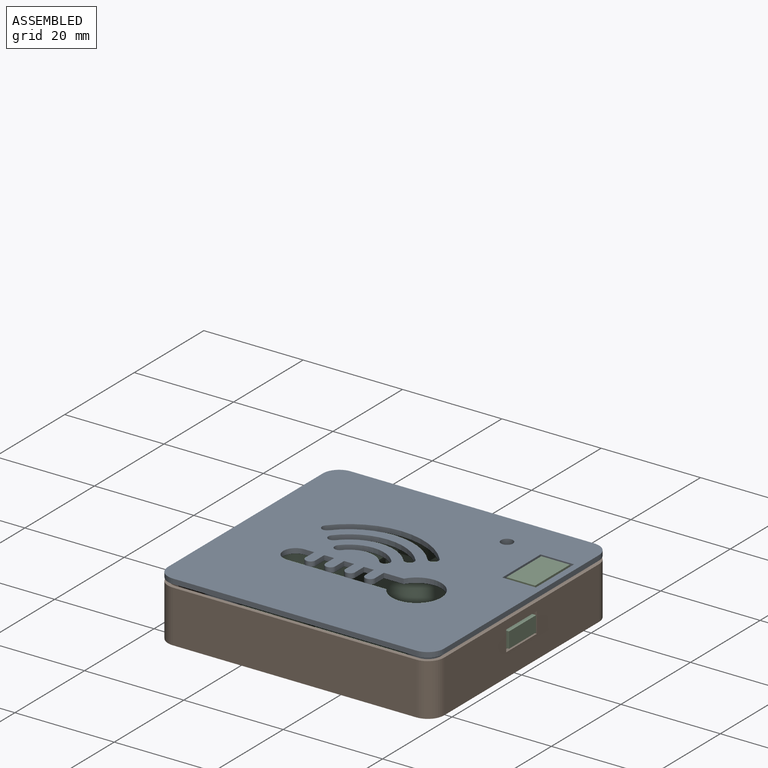
[diagram: assembled view]
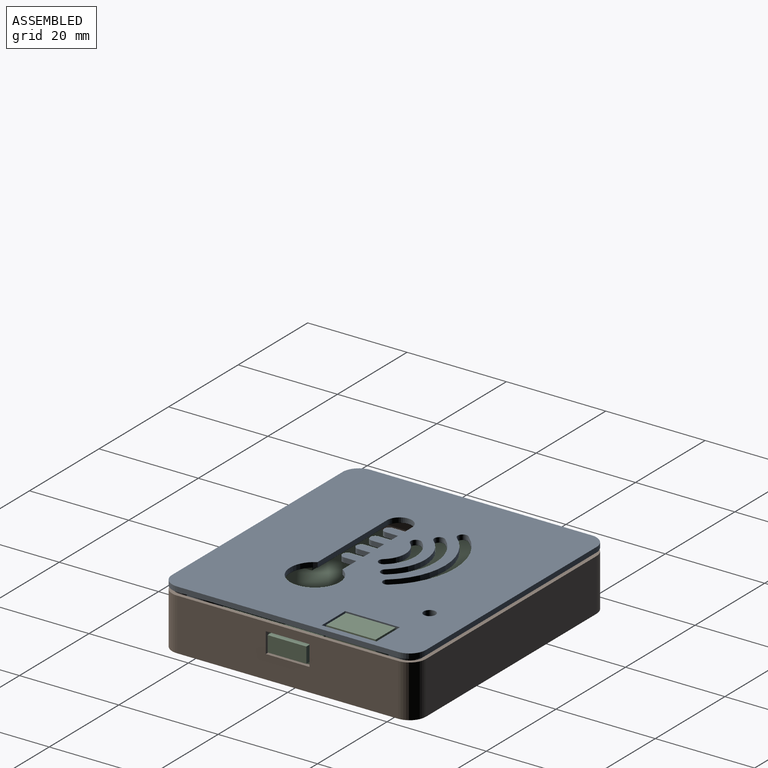
[diagram: assembled view, second angle]
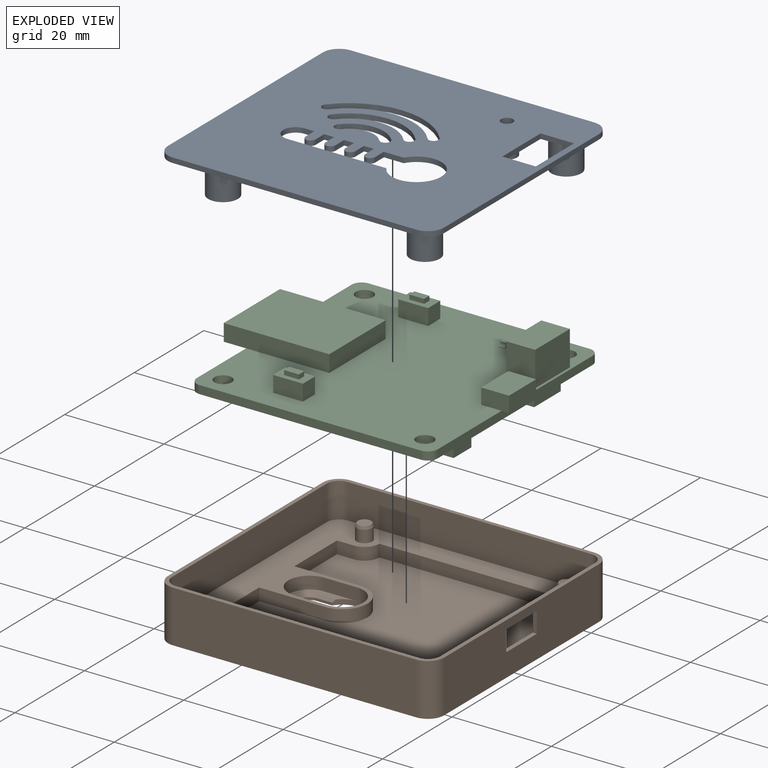
[diagram: exploded view]
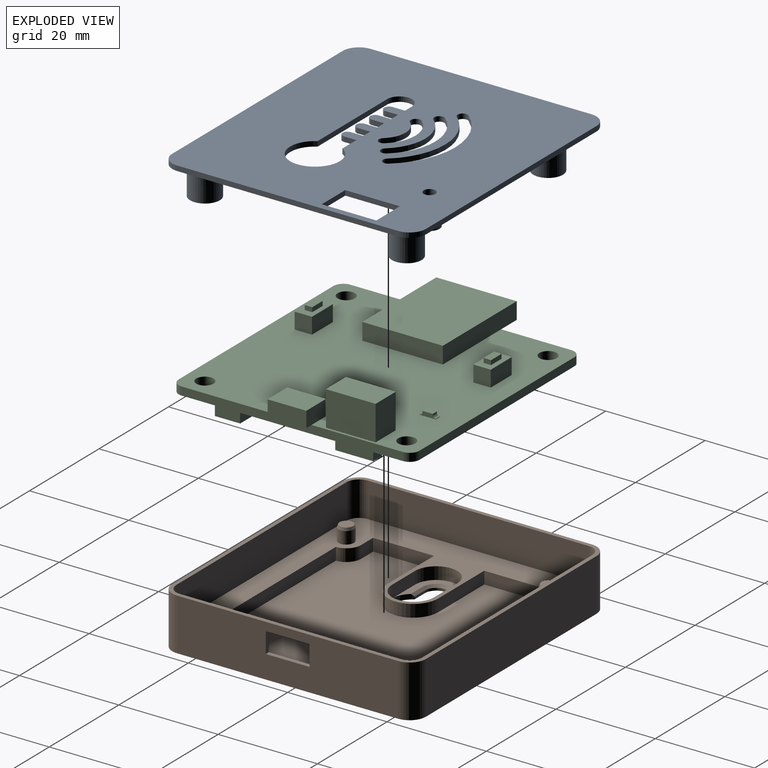
[diagram: exploded view, second angle]
ASSEMBLY  parts=3 mates=6
PART A: 65 faces, bbox 51.1x55.6x7 mm
  f0: plane 55.6x51.1mm, normal (0,0,-1), area 2357.9mm2, adj f1,f2,f3,f4,f5,f6,f7,f8
  f1: cylinder r=3.3mm len=3.3mm, axis (0,0,1), area 5.2mm2, adj f0,f2,f12,f13
  f2: plane 49x1mm, normal (-1,0,0), area 49mm2, adj f0,f1,f3,f13
  f3: cylinder r=3.3mm len=3.3mm, axis (0,0,1), area 5.2mm2, adj f0,f2,f4,f13
  f4: plane 44.5x1mm, normal (0,-1,0), area 44.5mm2, adj f0,f3,f5,f13
  f5: cylinder r=3.3mm len=3.3mm, axis (0,0,1), area 5.2mm2, adj f0,f4,f6,f13
  f6: plane 49x1mm, normal (1,0,0), area 49mm2, adj f0,f5,f7,f13
  f7: cylinder r=3.3mm len=3.3mm, axis (0,0,1), area 5.2mm2, adj f0,f6,f12,f13
  f8: plane 6.75x1mm, normal (1,0,0), area 6.7mm2, adj f0,f9,f11,f13
  f9: plane 11x1mm, normal (0,-1,0), area 11mm2, adj f0,f8,f10,f13
  f10: plane 6.75x1mm, normal (-1,0,0), area 6.7mm2, adj f0,f9,f11,f13
  f11: plane 11x1mm, normal (0,1,0), area 11mm2, adj f0,f8,f10,f13
  f12: plane 44.5x1mm, normal (0,1,0), area 44.5mm2, adj f0,f1,f7,f13
  f13: plane 55.6x51.1mm, normal (0,0,1), area 2479.1mm2, adj f1,f2,f3,f4,f5,f6,f7,f8
  f14: cylinder r=7mm len=10.72mm, axis (0,0,1), area 12.2mm2, adj f0,f13,f15,f17
  f15: cylinder r=1mm len=1.77mm, axis (0,0,1), area 3.1mm2, adj f0,f13,f14,f16
  f16: cylinder r=5mm len=7.66mm, axis (0,0,1), area 8.7mm2, adj f0,f13,f15,f17
  f17: cylinder r=1mm len=1.77mm, axis (0,0,1), area 3.1mm2, adj f0,f13,f14,f16
  f18: cylinder r=15mm len=22.98mm, axis (0,0,1), area 26.2mm2, adj f0,f13,f19,f21
  f19: cylinder r=1mm len=1.77mm, axis (0,0,1), area 3.1mm2, adj f0,f13,f18,f20
  f20: cylinder r=13mm len=19.92mm, axis (0,0,1), area 22.7mm2, adj f0,f13,f19,f21
  f21: cylinder r=1mm len=1.77mm, axis (0,0,1), area 3.1mm2, adj f0,f13,f18,f20
  f22: cylinder r=11mm len=16.85mm, axis (0,0,1), area 19.2mm2, adj f0,f13,f23,f25
  f23: cylinder r=1mm len=1.77mm, axis (0,0,1), area 3.1mm2, adj f0,f13,f22,f24
  f24: cylinder r=9mm len=13.79mm, axis (0,0,1), area 15.7mm2, adj f0,f13,f23,f25
  f25: cylinder r=1mm len=1.77mm, axis (0,0,1), area 3.1mm2, adj f0,f13,f22,f24
  f26: plane 2x1mm, normal (-1,0,0), area 2mm2, adj f0,f13,f27,f45
  f27: plane 2.5x1mm, normal (0,-1,0), area 2.5mm2, adj f0,f13,f26,f28
  f28: cylinder r=1mm len=2mm, axis (0,0,1), area 3.1mm2, adj f0,f13,f27,f29
  f29: plane 2.5x1mm, normal (0,1,0), area 2.5mm2, adj f0,f13,f28,f30
  f30: plane 2x1mm, normal (-1,0,0), area 2mm2, adj f0,f13,f29,f31
  f31: plane 2.5x1mm, normal (0,-1,0), area 2.5mm2, adj f0,f13,f30,f32
  f32: cylinder r=1mm len=2mm, axis (0,0,1), area 3.1mm2, adj f0,f13,f31,f33
  f33: plane 2.5x1mm, normal (0,1,0), area 2.5mm2, adj f0,f13,f32,f34
  f34: plane 2x1mm, normal (-1,0,0), area 2mm2, adj f0,f13,f33,f35
  f35: plane 2.5x1mm, normal (0,-1,0), area 2.5mm2, adj f0,f13,f34,f36
  f36: cylinder r=1mm len=2mm, axis (0,0,1), area 3.1mm2, adj f0,f13,f35,f37
  f37: plane 2.5x1mm, normal (0,1,0), area 2.5mm2, adj f0,f13,f36,f38
  f38: plane 2x1mm, normal (-1,0,0), area 2mm2, adj f0,f13,f37,f39
  f39: cylinder r=2.5mm len=5mm, axis (0,0,1), area 7.9mm2, adj f0,f13,f38,f40
  f40: plane 20x1mm, normal (1,0,0), area 20mm2, adj f0,f13,f39,f41
  f41: cylinder r=5mm len=10mm, axis (0,0,1), area 26.2mm2, adj f0,f13,f40,f42
  f42: plane 4x1mm, normal (-1,0,0), area 4mm2, adj f0,f13,f41,f43
  f43: plane 2.5x1mm, normal (0,-1,0), area 2.5mm2, adj f0,f13,f42,f44
  f44: cylinder r=1mm len=2mm, axis (0,0,1), area 3.1mm2, adj f0,f13,f43,f45
  f45: plane 2.5x1mm, normal (0,1,0), area 2.5mm2, adj f0,f13,f26,f44
  f46: cylinder r=1.2mm len=6.15mm, axis (0,0,1), area 46.4mm2, adj f13,f47
  f47: plane 4x4mm, normal (0,0,-1), area 8mm2, adj f46,f48
  f48: cylinder r=2mm len=5.15mm, axis (0,0,1), area 64.8mm2, adj f0,f47
  f49: plane 6x6mm, normal (0,0,-1), area 18.7mm2, adj f50,f63
  f50: cylinder r=3mm len=6mm, axis (0,0,1), area 113.1mm2, adj f0,f49
  f51: plane 6x6mm, normal (0,0,-1), area 18.7mm2, adj f52,f61
  f52: cylinder r=3mm len=6mm, axis (0,0,1), area 113.1mm2, adj f0,f51
  f53: plane 6x6mm, normal (0,0,-1), area 18.7mm2, adj f54,f59
  f54: cylinder r=3mm len=6mm, axis (0,0,1), area 113.1mm2, adj f0,f53
  f55: plane 6x6mm, normal (0,0,-1), area 18.7mm2, adj f56,f57
  f56: cylinder r=3mm len=6mm, axis (0,0,1), area 113.1mm2, adj f0,f55
  f57: cylinder r=1.75mm len=4mm, axis (0,0,-1), area 44mm2, adj f55,f58
  f58: plane 3.5x3.5mm, normal (0,0,-1), area 9.6mm2, adj f57
  f59: cylinder r=1.75mm len=4mm, axis (0,0,-1), area 44mm2, adj f53,f60
  f60: plane 3.5x3.5mm, normal (0,0,-1), area 9.6mm2, adj f59
  f61: cylinder r=1.75mm len=4mm, axis (0,0,-1), area 44mm2, adj f51,f62
  f62: plane 3.5x3.5mm, normal (0,0,-1), area 9.6mm2, adj f61
  f63: cylinder r=1.75mm len=4mm, axis (0,0,-1), area 44mm2, adj f49,f64
  f64: plane 3.5x3.5mm, normal (0,0,-1), area 9.6mm2, adj f63
PART B: 63 faces, bbox 51.1x55.6x10.5 mm
  f0: plane 12.27x2.5mm, normal (0,-1,0), area 30.7mm2, adj f23,f26,f36,f51
  f1: plane 10.86x8.5mm, normal (0,0,1), area 29.6mm2, adj f49,f52,f53,f54,f56,f57,f58
  f2: cylinder r=3.3mm len=10.5mm, axis (0,0,-1), area 54.4mm2, adj f3,f17,f18,f37
  f3: plane 44.5x10.5mm, normal (0,1,0), area 467.2mm2, adj f2,f4,f18,f37
  f4: cylinder r=3.3mm len=10.5mm, axis (0,0,-1), area 54.4mm2, adj f3,f5,f18,f37
  f5: plane 49x10.5mm, normal (-1,0,0), area 514.5mm2, adj f4,f6,f18,f37
  f6: cylinder r=3.3mm len=10.5mm, axis (0,0,-1), area 54.4mm2, adj f5,f7,f18,f37
  f7: plane 44.5x10.5mm, normal (0,-1,0), area 430.7mm2, adj f6,f8,f18,f19,f20,f21,f22,f37
  f8: cylinder r=3.3mm len=10.5mm, axis (0,0,-1), area 54.4mm2, adj f7,f17,f18,f37
  f9: cylinder r=2.5mm len=7mm, axis (0,0,-1), area 27.5mm2, adj f10,f16,f18,f23
  f10: plane 44.5x7mm, normal (0,1,0), area 275mm2, adj f9,f11,f18,f19,f20,f21,f22,f23
  f11: cylinder r=2.5mm len=7mm, axis (0,0,-1), area 27.5mm2, adj f10,f12,f18,f23
  f12: plane 49x7mm, normal (1,0,0), area 343mm2, adj f11,f13,f18,f23
  f13: cylinder r=2.5mm len=7mm, axis (0,0,-1), area 27.5mm2, adj f12,f14,f18,f23
  f14: plane 44.5x7mm, normal (0,-1,0), area 311.5mm2, adj f13,f15,f18,f23
  f15: cylinder r=2.5mm len=7mm, axis (0,0,-1), area 27.5mm2, adj f14,f16,f18,f23
  f16: plane 49x7mm, normal (-1,0,0), area 343mm2, adj f9,f15,f18,f23
  f17: plane 49x10.5mm, normal (1,0,0), area 514.5mm2, adj f2,f8,f18,f37
  f18: plane 55.6x51.1mm, normal (0,0,1), area 164.2mm2, adj f2,f3,f4,f5,f6,f7,f8,f9
  f19: plane 8.8x0.8mm, normal (0,0,-1), area 7mm2, adj f7,f10,f20,f22
  f20: plane 4.15x0.8mm, normal (1,0,0), area 3.3mm2, adj f7,f10,f19,f21
  f21: plane 8.8x0.8mm, normal (0,0,1), area 7mm2, adj f7,f10,f20,f22
  f22: plane 4.15x0.8mm, normal (-1,0,0), area 3.3mm2, adj f7,f10,f19,f21
  f23: plane 54x49.5mm, normal (0,0,1), area 843.9mm2, adj f0,f9,f10,f11,f12,f13,f14,f15
  f24: plane 34.64x2.5mm, normal (-1,0,0), area 86.6mm2, adj f23,f25,f35,f36
  f25: cylinder r=3mm len=3mm, axis (0,0,1), area 11.8mm2, adj f23,f24,f26,f36
  f26: plane 3.43x2.5mm, normal (-1,0,0), area 8.6mm2, adj f0,f23,f25,f36
  f27: plane 12.27x2.5mm, normal (0,-1,0), area 30.7mm2, adj f23,f28,f36,f55
  f28: plane 3.43x2.5mm, normal (1,0,0), area 8.6mm2, adj f23,f27,f29,f36
  f29: cylinder r=3mm len=3mm, axis (0,0,1), area 11.8mm2, adj f23,f28,f30,f36
  f30: plane 34.64x2.5mm, normal (1,0,0), area 86.6mm2, adj f23,f29,f31,f36
  f31: cylinder r=3mm len=3mm, axis (0,0,1), area 11.8mm2, adj f23,f30,f32,f36
  f32: plane 3.23x2.5mm, normal (1,0,0), area 8.1mm2, adj f23,f31,f33,f36
  f33: plane 34.64x2.5mm, normal (0,1,0), area 86.6mm2, adj f23,f32,f34,f36
  f34: plane 3.23x2.5mm, normal (-1,0,0), area 8.1mm2, adj f23,f33,f35,f36
  f35: cylinder r=3mm len=3mm, axis (0,0,1), area 11.8mm2, adj f23,f24,f34,f36
  f36: plane 47.3x40.64mm, normal (0,0,1), area 1680.7mm2, adj f0,f24,f25,f26,f27,f28,f29,f30
  f37: plane 55.6x51.1mm, normal (0,0,-1), area 2755.6mm2, adj f2,f3,f4,f5,f6,f7,f8,f17
  f38: cylinder r=1.55mm len=3.1mm, axis (0,0,-1), area 23.9mm2, adj f23,f62
  f39: plane 2.7x2.7mm, normal (0,0,1), area 5.7mm2, adj f62
  f40: cylinder r=1.55mm len=3.1mm, axis (0,0,-1), area 23.9mm2, adj f23,f59
  f41: plane 2.7x2.7mm, normal (0,0,1), area 5.7mm2, adj f59
  f42: cylinder r=1.55mm len=3.1mm, axis (0,0,-1), area 23.9mm2, adj f23,f61
  f43: plane 2.7x2.7mm, normal (0,0,1), area 5.7mm2, adj f61
  f44: cylinder r=1.55mm len=3.1mm, axis (0,0,-1), area 23.9mm2, adj f23,f60
  f45: plane 2.7x2.7mm, normal (0,0,1), area 5.7mm2, adj f60
  f46: plane 3x0.5mm, normal (1,0,0), area 1.5mm2, adj f37,f47,f49,f56
  f47: cylinder r=2.25mm len=4.5mm, axis (0,0,-1), area 3.5mm2, adj f37,f46,f48,f57
  f48: plane 3x0.5mm, normal (-1,0,0), area 1.5mm2, adj f37,f47,f49,f58
  f49: cylinder r=4.25mm len=8.5mm, axis (0,0,-1), area 55mm2, adj f1,f23,f37,f46,f48,f52,f53,f56
  f50: cylinder r=5.05mm len=10.1mm, axis (0,0,-1), area 39.7mm2, adj f23,f36,f51,f55
  f51: plane 13.2x2.5mm, normal (1,0,0), area 33mm2, adj f0,f23,f36,f50
  f52: plane 6.61x2.5mm, normal (-1,0,0), area 16.5mm2, adj f1,f23,f49,f54
  f53: plane 6.61x2.5mm, normal (1,0,0), area 16.5mm2, adj f1,f23,f49,f54
  f54: cylinder r=4.25mm len=8.5mm, axis (0,0,-1), area 33.4mm2, adj f1,f23,f52,f53
  f55: plane 13.2x2.5mm, normal (-1,0,0), area 33mm2, adj f23,f27,f36,f50
  f56: plane 3.38x0.51mm, normal (0.71,0,0.71), area 2.2mm2, adj f1,f46,f49,f57
  f57: cone r=2.75mm half-angle=45deg, axis (0,0,1), area 5.6mm2, adj f1,f47,f56,f58
  f58: plane 3.38x0.51mm, normal (-0.71,0,0.71), area 2.2mm2, adj f1,f48,f49,f57
  f59: cone r=1.35mm half-angle=20deg, axis (0,0,-1), area 5.3mm2, adj f40,f41
  f60: cone r=1.35mm half-angle=20deg, axis (0,0,-1), area 5.3mm2, adj f44,f45
  f61: cone r=1.35mm half-angle=20deg, axis (0,0,-1), area 5.3mm2, adj f42,f43
  f62: cone r=1.35mm half-angle=20deg, axis (0,0,-1), area 5.3mm2, adj f38,f39
PART C: 107 faces, bbox 48.5x54.5x11.2 mm
  f0: plane 48.5x48.5mm, normal (0,0,1), area 1903.5mm2, adj f3,f4,f5,f6,f7,f8,f9,f10
  f1: plane 1.2x0.11mm, normal (0,0,1), area 0.1mm2, adj f78,f79,f80,f86
  f2: plane 48.5x48.5mm, normal (0,0,-1), area 1996.6mm2, adj f3,f4,f5,f6,f7,f8,f9,f10
  f3: cylinder r=2mm len=2mm, axis (0,0,-1), area 5.2mm2, adj f0,f2,f4,f14
  f4: plane 44.5x1.65mm, normal (0,-1,0), area 73.4mm2, adj f0,f2,f3,f5,f21
  f5: cylinder r=2mm len=2mm, axis (0,0,-1), area 5.2mm2, adj f0,f2,f4,f6
  f6: plane 44.5x1.65mm, normal (1,0,0), area 73.4mm2, adj f0,f2,f5,f7
  f7: cylinder r=2mm len=2mm, axis (0,0,-1), area 5.2mm2, adj f0,f2,f6,f8
  f8: plane 44.5x1.65mm, normal (0,1,0), area 73.4mm2, adj f0,f2,f7,f9,f20
  f9: cylinder r=2mm len=2mm, axis (0,0,-1), area 5.2mm2, adj f0,f2,f8,f14
  f10: cylinder r=1.75mm len=3.5mm, axis (0,0,-1), area 18.1mm2, adj f0,f2
  f11: cylinder r=1.75mm len=3.5mm, axis (0,0,-1), area 18.1mm2, adj f0,f2
  f12: cylinder r=1.75mm len=3.5mm, axis (0,0,-1), area 18.1mm2, adj f0,f2
  f13: cylinder r=1.75mm len=3.5mm, axis (0,0,-1), area 18.1mm2, adj f0,f2
  f14: plane 44.5x1.65mm, normal (-1,0,0), area 73.4mm2, adj f0,f2,f3,f9
  f15: plane 16.2x3.4mm, normal (0,1,0), area 55.1mm2, adj f16,f18,f19,f20
  f16: plane 21.25x3.4mm, normal (-1,0,0), area 72.3mm2, adj f0,f15,f17,f19,f20
  f17: plane 16.2x3.4mm, normal (0,-1,0), area 55.1mm2, adj f0,f16,f18,f19
  f18: plane 21.25x3.4mm, normal (1,0,0), area 72.3mm2, adj f0,f15,f17,f19,f20
  f19: plane 21.25x16.2mm, normal (0,0,1), area 344.2mm2, adj f15,f16,f17,f18
  f20: plane 16.2x4.5mm, normal (0,0,-1), area 72.9mm2, adj f8,f15,f16,f18
  f21: plane 7.8x1.5mm, normal (0,0,-1), area 11.7mm2, adj f4,f22,f23,f24
  f22: plane 5.6x3.15mm, normal (-1,0,0), area 17.6mm2, adj f0,f21,f23,f25,f26
  f23: plane 7.8x3.15mm, normal (0,-1,0), area 24.6mm2, adj f21,f22,f24,f26
  f24: plane 5.6x3.15mm, normal (1,0,0), area 17.6mm2, adj f0,f21,f23,f25,f26
  f25: plane 7.8x3.15mm, normal (0,1,0), area 24.6mm2, adj f0,f22,f24,f26
  f26: plane 7.8x5.6mm, normal (0,0,1), area 43.7mm2, adj f22,f23,f24,f25
  f27: plane 10x7mm, normal (0,-1,0), area 70mm2, adj f0,f28,f30,f31
  f28: plane 7x5.75mm, normal (1,0,0), area 40.2mm2, adj f0,f27,f29,f31
  f29: plane 10x7mm, normal (0,1,0), area 70mm2, adj f0,f28,f30,f31
  f30: plane 7x5.75mm, normal (-1,0,0), area 40.2mm2, adj f0,f27,f29,f31
  f31: plane 10x5.75mm, normal (0,0,1), area 57.5mm2, adj f27,f28,f29,f30
  f32: plane 2.54x2.5mm, normal (-1,0,0), area 6.3mm2, adj f2,f33,f35,f36
  f33: plane 15.24x2.5mm, normal (0,1,0), area 38.1mm2, adj f2,f32,f34,f36
  f34: plane 2.54x2.5mm, normal (1,0,0), area 6.4mm2, adj f2,f33,f35,f36
  f35: plane 15.24x2.5mm, normal (0,-1,0), area 38.1mm2, adj f2,f32,f34,f36
  f36: plane 15.24x2.54mm, normal (0,0,-1), area 38.7mm2, adj f32,f33,f34,f35
  f37: plane 20.32x2.5mm, normal (-1,0,0), area 50.8mm2, adj f2,f38,f40,f41
  f38: plane 2.54x2.5mm, normal (0,1,0), area 6.3mm2, adj f2,f37,f39,f41
  f39: plane 20.32x2.5mm, normal (1,0,0), area 50.8mm2, adj f2,f38,f40,f41
  f40: plane 2.54x2.5mm, normal (0,-1,0), area 6.3mm2, adj f2,f37,f39,f41
  f41: plane 20.32x2.54mm, normal (0,0,-1), area 51.6mm2, adj f37,f38,f39,f40
  f42: plane 2.54x2.5mm, normal (0,1,0), area 6.3mm2, adj f2,f43,f45,f46
  f43: plane 20.32x2.5mm, normal (1,0,0), area 50.8mm2, adj f2,f42,f44,f46
  f44: plane 2.54x2.5mm, normal (0,-1,0), area 6.3mm2, adj f2,f43,f45,f46
  f45: plane 20.32x2.5mm, normal (-1,0,0), area 50.8mm2, adj f2,f42,f44,f46
  f46: plane 20.32x2.54mm, normal (0,0,-1), area 51.6mm2, adj f42,f43,f44,f45
  f47: plane 2.54x2.5mm, normal (-1,0,0), area 6.4mm2, adj f2,f48,f50,f51
  f48: plane 7.62x2.5mm, normal (0,1,0), area 19mm2, adj f2,f47,f49,f51
  f49: plane 2.54x2.5mm, normal (1,0,0), area 6.4mm2, adj f2,f48,f50,f51
  f50: plane 7.62x2.5mm, normal (0,-1,0), area 19mm2, adj f2,f47,f49,f51
  f51: plane 7.62x2.54mm, normal (0,0,-1), area 19.4mm2, adj f47,f48,f49,f50
  f52: plane 2.54x2.5mm, normal (-1,0,0), area 6.4mm2, adj f2,f53,f55,f56
  f53: plane 7.62x2.5mm, normal (0,1,0), area 19mm2, adj f2,f52,f54,f56
  f54: plane 2.54x2.5mm, normal (1,0,0), area 6.4mm2, adj f2,f53,f55,f56
  f55: plane 7.62x2.5mm, normal (0,-1,0), area 19mm2, adj f2,f52,f54,f56
  f56: plane 7.62x2.54mm, normal (0,0,-1), area 19.4mm2, adj f52,f53,f54,f55
  f57: plane 3.5x2.5mm, normal (-1,0,0), area 8.8mm2, adj f2,f58,f60,f61
  f58: plane 5.08x2.5mm, normal (0,1,0), area 12.7mm2, adj f2,f57,f59,f61
  f59: plane 3.5x2.5mm, normal (1,0,0), area 8.8mm2, adj f2,f58,f60,f61
  f60: plane 5.08x2.5mm, normal (0,-1,0), area 12.7mm2, adj f2,f57,f59,f61
  f61: plane 5.08x3.5mm, normal (0,0,-1), area 17.8mm2, adj f57,f58,f59,f60
  f62: plane 15.6x2.5mm, normal (-1,0,0), area 39mm2, adj f2,f63,f65,f66
  f63: plane 2.7x2.5mm, normal (0,1,0), area 6.8mm2, adj f2,f62,f64,f66
  f64: plane 15.6x2.5mm, normal (1,0,0), area 39mm2, adj f2,f63,f65,f66
  f65: plane 2.7x2.5mm, normal (0,-1,0), area 6.8mm2, adj f2,f62,f64,f66
  f66: plane 15.6x2.7mm, normal (0,0,-1), area 42.1mm2, adj f62,f63,f64,f65
  f67: plane 2.7x2.5mm, normal (-1,0,0), area 6.8mm2, adj f2,f68,f70,f71
  f68: plane 11.5x2.5mm, normal (0,1,0), area 28.8mm2, adj f2,f67,f69,f71
  f69: plane 2.7x2.5mm, normal (1,0,0), area 6.8mm2, adj f2,f68,f70,f71
  f70: plane 11.5x2.5mm, normal (0,-1,0), area 28.8mm2, adj f2,f67,f69,f71
  f71: plane 11.5x2.7mm, normal (0,0,-1), area 31.1mm2, adj f67,f68,f69,f70
  f72: plane 2.7x2.5mm, normal (0,1,0), area 6.8mm2, adj f2,f73,f75,f76
  f73: plane 15.6x2.5mm, normal (1,0,0), area 39mm2, adj f2,f72,f74,f76
  f74: plane 2.7x2.5mm, normal (0,-1,0), area 6.8mm2, adj f2,f73,f75,f76
  f75: plane 15.6x2.5mm, normal (-1,0,0), area 39mm2, adj f2,f72,f74,f76
  f76: plane 15.6x2.7mm, normal (0,0,-1), area 42.1mm2, adj f72,f73,f74,f75
  f77: plane 1.2x0.1mm, normal (-1,0,0), area 0.1mm2, adj f0,f78,f80,f81
  f78: plane 3.3x0.85mm, normal (0,-1,0), area 2mm2, adj f0,f1,f77,f79,f81,f82,f83,f84
  f79: plane 1.2x0.1mm, normal (1,0,0), area 0.1mm2, adj f0,f1,f78,f80
  f80: plane 3.3x0.85mm, normal (0,1,0), area 2mm2, adj f0,f1,f77,f79,f81,f82,f83,f84
  f81: plane 1.2x0.11mm, normal (0,0,1), area 0.1mm2, adj f77,f78,f80,f85
  f82: plane 1.2x0.25mm, normal (1,0,0), area 0.3mm2, adj f78,f80,f84,f86
  f83: plane 1.2x0.25mm, normal (-1,0,0), area 0.3mm2, adj f78,f80,f84,f85
  f84: plane 2.08x1.2mm, normal (0,0,1), area 2.5mm2, adj f78,f80,f82,f83
  f85: cylinder r=0.5mm len=1.2mm, axis (0,-1,0), area 0.9mm2, adj f78,f80,f81,f83
  f86: cylinder r=0.5mm len=1.2mm, axis (0,1,0), area 0.9mm2, adj f1,f78,f80,f82
  f87: plane 6x3.25mm, normal (-1,0,0), area 19.5mm2, adj f0,f88,f90,f91
  f88: plane 3.5x3.25mm, normal (0,-1,0), area 11.4mm2, adj f0,f87,f89,f91
  f89: plane 6x3.25mm, normal (1,0,0), area 19.5mm2, adj f0,f88,f90,f91
  f90: plane 3.5x3.25mm, normal (0,1,0), area 11.4mm2, adj f0,f87,f89,f91
  f91: plane 6x3.5mm, normal (0,0,1), area 16.5mm2, adj f87,f88,f89,f90,f102,f103,f104,f105
  f92: plane 6x3.25mm, normal (1,0,0), area 19.5mm2, adj f0,f93,f95,f96
  f93: plane 3.5x3.25mm, normal (0,1,0), area 11.4mm2, adj f0,f92,f94,f96
  f94: plane 6x3.25mm, normal (-1,0,0), area 19.5mm2, adj f0,f93,f95,f96
  f95: plane 3.5x3.25mm, normal (0,-1,0), area 11.4mm2, adj f0,f92,f94,f96
  f96: plane 6x3.5mm, normal (0,0,1), area 16.5mm2, adj f92,f93,f94,f95,f97,f98,f99,f100
  f97: plane 3x0.9mm, normal (-1,0,0), area 2.7mm2, adj f96,f98,f100,f101
  f98: plane 1.5x0.9mm, normal (0,-1,0), area 1.3mm2, adj f96,f97,f99,f101
  f99: plane 3x0.9mm, normal (1,0,0), area 2.7mm2, adj f96,f98,f100,f101
  f100: plane 1.5x0.9mm, normal (0,1,0), area 1.3mm2, adj f96,f97,f99,f101
  f101: plane 3x1.5mm, normal (0,0,1), area 4.5mm2, adj f97,f98,f99,f100
  f102: plane 1.5x0.9mm, normal (0,1,0), area 1.3mm2, adj f91,f103,f105,f106
  f103: plane 3x0.9mm, normal (-1,0,0), area 2.7mm2, adj f91,f102,f104,f106
  f104: plane 1.5x0.9mm, normal (0,-1,0), area 1.3mm2, adj f91,f103,f105,f106
  f105: plane 3x0.9mm, normal (1,0,0), area 2.7mm2, adj f91,f102,f104,f106
  f106: plane 3x1.5mm, normal (0,0,1), area 4.5mm2, adj f102,f103,f104,f105
PLACE A rot(axis=(0,0,1),90deg) t=(-25.55,0,3.5)mm
PLACE B rot(axis=(0,0,1),90deg) t=(-25.55,0,3.5)mm
PLACE C rot(axis=(0,0,1),90deg) t=(-25.55,0,3.5)mm
MATE planar C.f2 <-> B.f23  axis (0,0,-1) through (-25.55,-24.25,3.5)mm
MATE cylindrical A.f50 <-> B.f31  axis (0,0,1) through (-5.23,-20.32,8.15)mm
MATE planar A.f50 <-> C.f0  axis (0,0,-1) through (-5.23,-20.32,5.15)mm
MATE cylindrical C.f11 <-> B.f25  axis (0,0,-1) through (-45.87,20.32,5.15)mm
MATE cylindrical A.f56 <-> B.f35  axis (0,0,-1) through (-5.23,20.32,5.15)mm
MATE cylindrical B.f31 <-> C.f12  axis (0,0,1) through (-5.23,-20.32,3.5)mm
